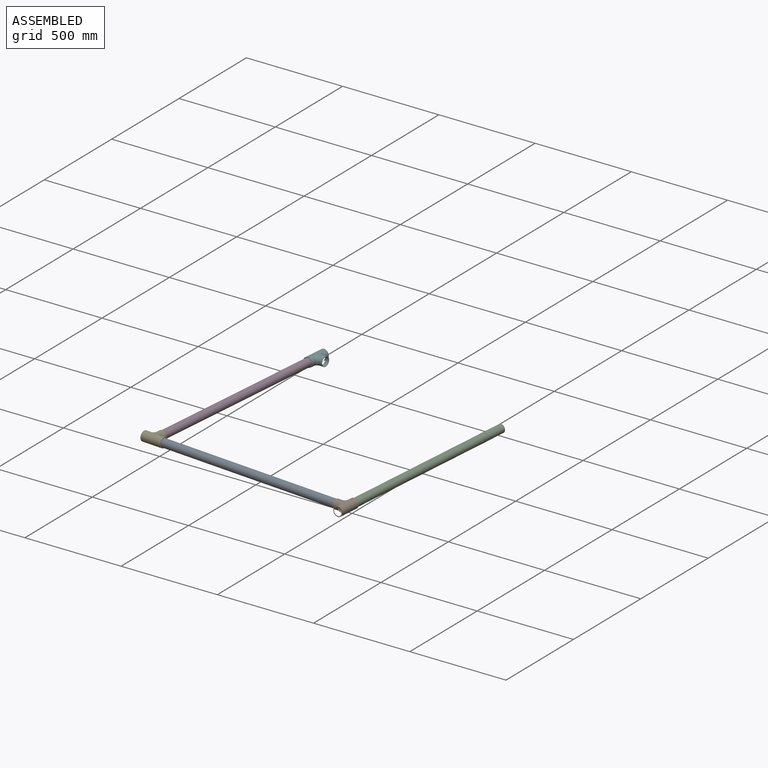
[diagram: assembled view]
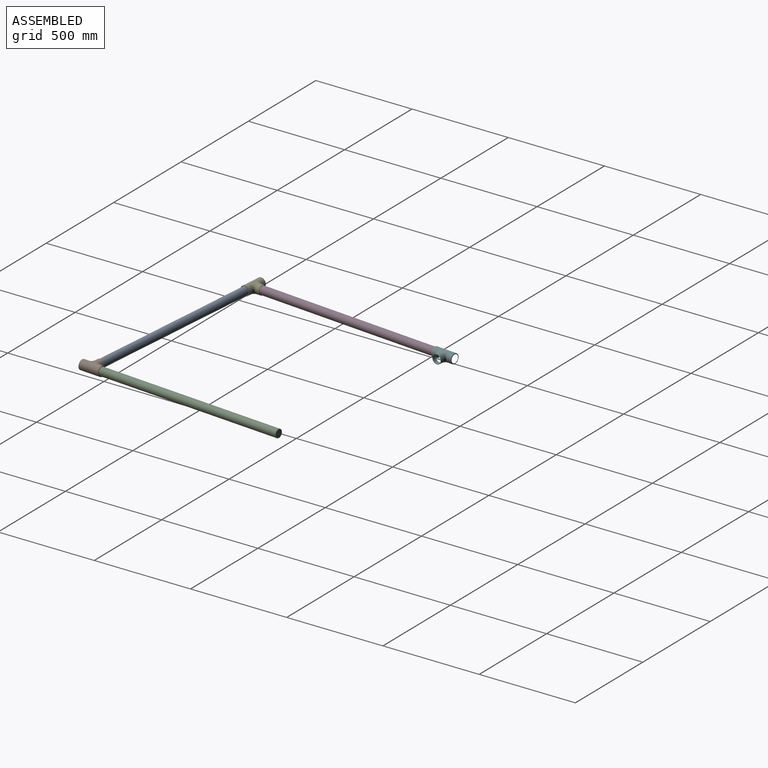
[diagram: assembled view, second angle]
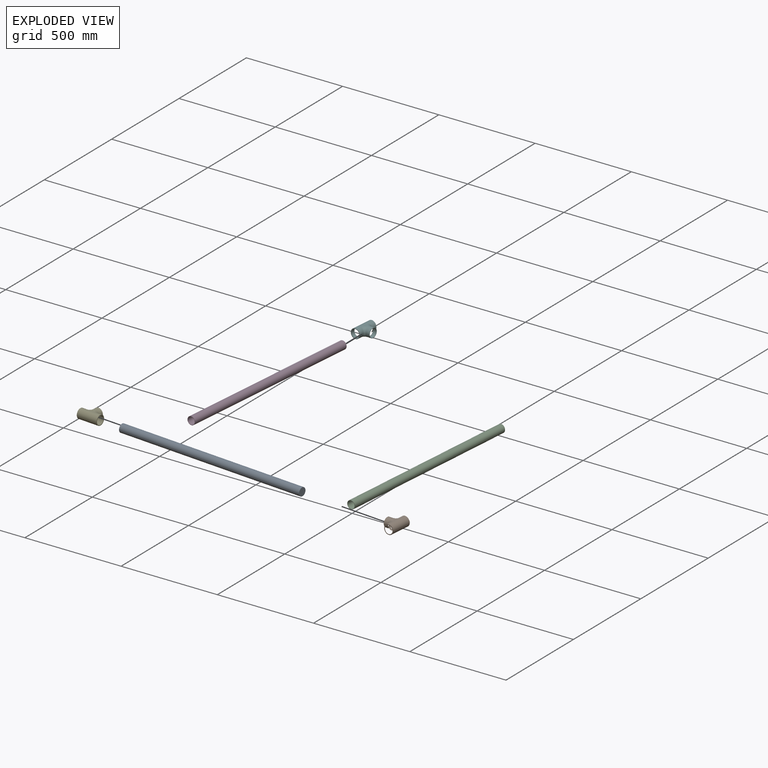
[diagram: exploded view]
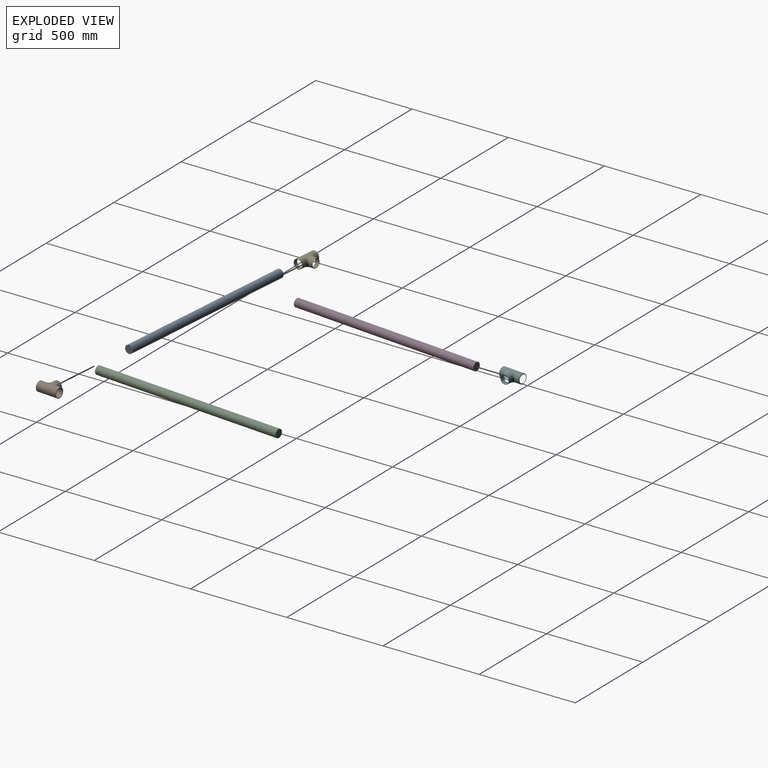
[diagram: exploded view, second angle]
ASSEMBLY  parts=6 mates=3
PART A: 5 faces, bbox 42.4x1000x42.4 mm
  f0: cylinder r=21.2mm len=1000mm, axis (0,1,0), area 133203.5mm2, adj f1,f2
  f1: plane 42.4x42.4mm, normal (0,-1,0), area 253.8mm2, adj f0,f3
  f2: plane 42.4x42.4mm, normal (0,1,0), area 1412mm2, adj f0
  f3: cylinder r=19.2mm len=998mm, axis (0,1,0), area 120395.9mm2, adj f1,f4
  f4: plane 38.4x38.4mm, normal (0,-1,0), area 1158.1mm2, adj f3
PART B: 13 faces, bbox 110.4x78.4x96 mm
  f0: bspline ~48x38.18mm, area 1756.3mm2, adj f1,f5,f11
  f1: cylinder r=24mm len=48mm, axis (0,-1,0), area 2876.4mm2, adj f0,f2,f11
  f2: plane 48x48mm, normal (0,1,0), area 289mm2, adj f1,f3
  f3: cylinder r=22mm len=44mm, axis (0,-1,0), area 2636.7mm2, adj f2,f4
  f4: bspline ~48x48mm, area 135.1mm2, adj f3
  f5: cylinder r=25mm len=110.18mm, axis (-1,0,0), area 13914.8mm2, adj f0,f6,f9,f11
  f6: plane 50x50mm, normal (-1,0,0), area 154mm2, adj f5,f7
  f7: bspline ~96x48.08mm, area 34.5mm2, adj f6,f8
  f8: bspline ~48x48mm, area 424.1mm2, adj f7
  f9: plane 50x50mm, normal (1,0,0), area 443mm2, adj f5,f10
  f10: cylinder r=22mm len=51.79mm, axis (1,0,0), area 4138.8mm2, adj f9
  f11: bspline ~96x58.78mm, area 1750.6mm2, adj f0,f1,f5
  f12: cylinder r=22mm len=42mm, axis (-1,0,0), area 552.2mm2
PART C: same geometry as A
PART D: same geometry as A
PART E: same geometry as B
PART F: same geometry as B
PLACE A rot(axis=(0,0,-1),95deg) t=(-26.01,-562.02,10.95)mm
PLACE B rot(axis=(0,0,1),85deg) t=(470.85,-586,46.28)mm
PLACE C rot(axis=(0,0,-1),4.7deg) t=(604.28,-28.87,10.95)mm
PLACE D rot(axis=(0,0,-1),5.2deg) t=(-453.84,62.92,10.95)mm
PLACE E rot(axis=(0,0,-1),5.2deg) t=(-584.64,-426.36,46.28)mm
PLACE F rot(axis=(0,0,-1),95.4deg) t=(-420.92,630.52,46.28)mm
MATE slider E.f10 <-> A.f0  axis (1,-0.09,0) through (-499.67,-468.12,46.28)mm
MATE slider E.f1 <-> D.f0  axis (0.09,1,0) through (-549.5,-410.39,46.28)mm
MATE slider B.f1 <-> A.f0  axis (-1,0.09,0) through (454.75,-550.92,46.28)mm
